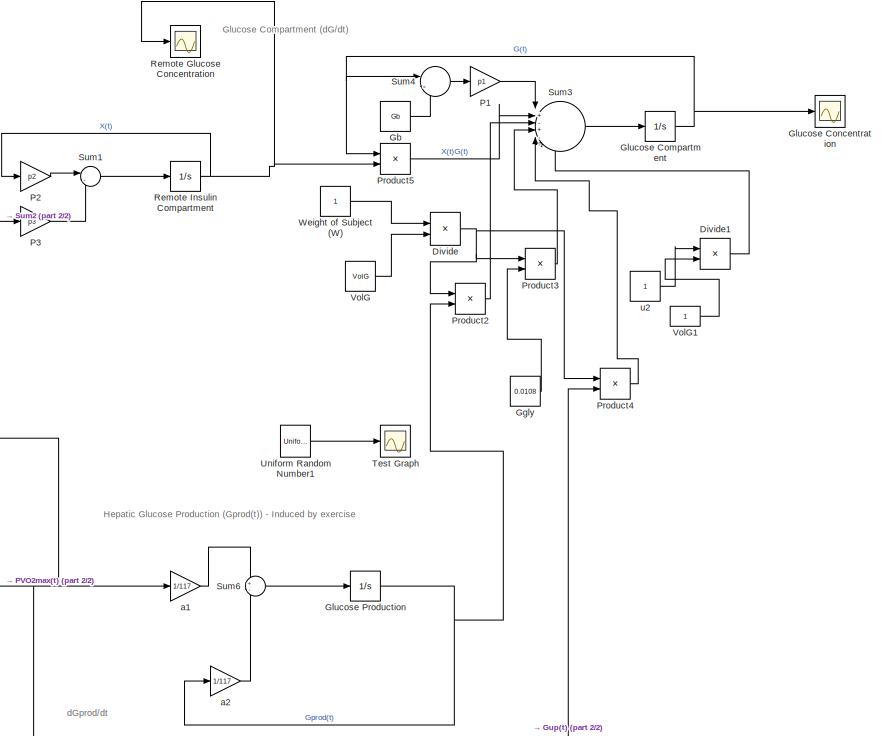
[diagram: root canvas - part 1/2, middle right region]
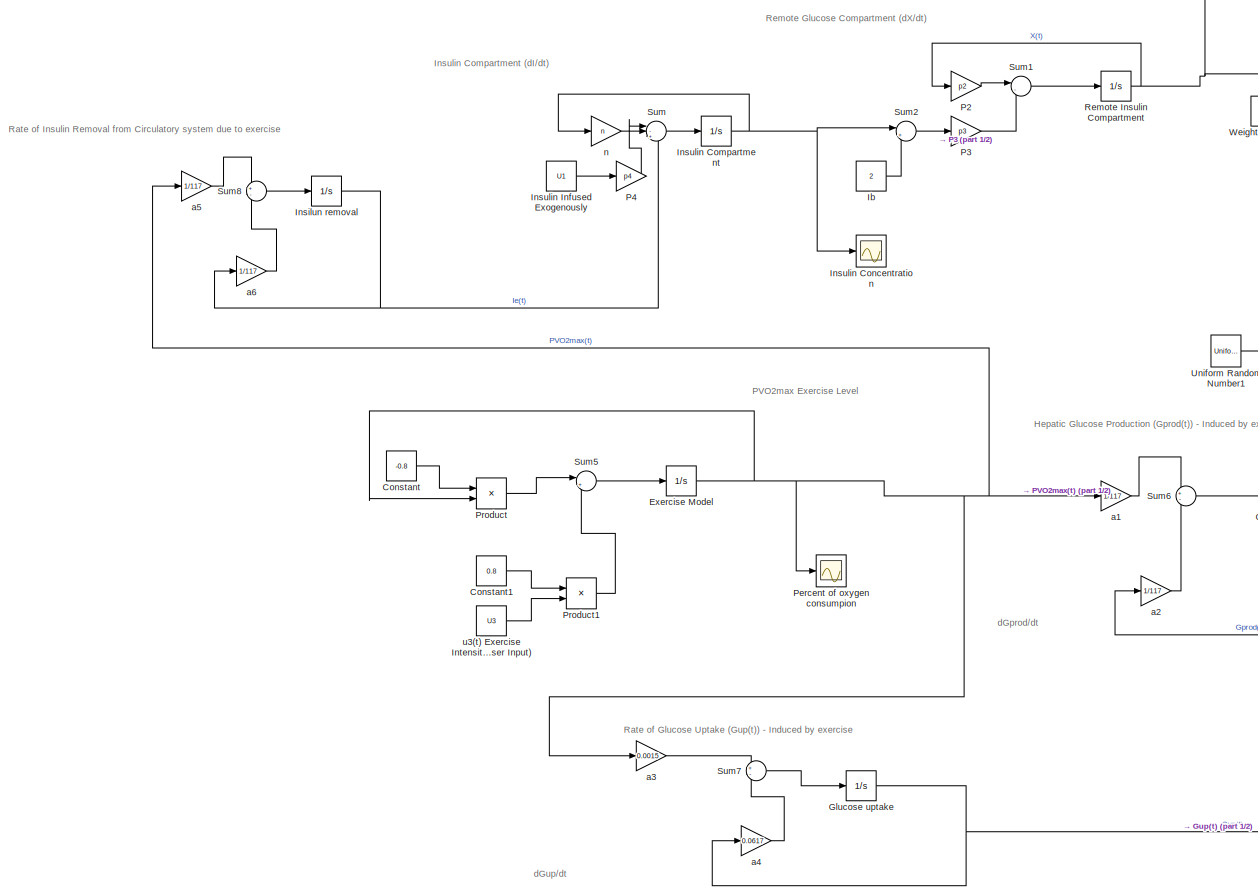
[diagram: root canvas - part 2/2, center side, full height]
MODEL slx_4f7b516d8ad5
KIND model
CONFIG AbsTol = auto
CONFIG EnableMultiTasking = off
CONFIG FixedStep = auto
CONFIG MaxStep = auto
CONFIG MinStep = auto
CONFIG RelTol = 1e-3
CONFIG SampleTimeConstraint = Unconstrained
CONFIG SolverName = VariableStepAuto
CONFIG StartTime = 0.0
CONFIG StopTime = 1000
WORKSPACE source: mxarray member
WORKSPACE Gb = 80
WORKSPACE U1 = 10
WORKSPACE U3 = 0
WORKSPACE VolG = 117
WORKSPACE n = 0.142
WORKSPACE p1 = 0.035
WORKSPACE p2 = 0.05
WORKSPACE p3 = 2.8e-05
WORKSPACE p4 = 0.098
BLOCK [Constant] Constant
  Value = -0.8
BLOCK [Constant] Constant1
  Value = 0.8
BLOCK [Product] Divide
  Inputs = */
  Ports = [2, 1]
BLOCK [Product] Divide1
  Inputs = */
  Ports = [2, 1]
BLOCK [Integrator] Exercise Model 
  Ports = [1, 1]
BLOCK [Constant] Gb
  NameLocation = top
  Value = Gb
BLOCK [Constant] Ggly
  Value = 0.0108
BLOCK [Integrator] Glucose Compartment
  Ports = [1, 1]
BLOCK [Scope] Glucose Concentration
  Floating = off
  NumInputPorts = 1
  Ports = [1]
  ScopeSpecificationString = Simulink.scopes.TimeScopeBlockCfg('CurrentConfiguration', extmgr.ConfigurationSet(extmgr.Configuration('Core','General UI',true),extmgr.Configuration('Core','Source UI',true),extmgr.Configuration('Sources','WiredSimulink',true,'DataLoggingVariableName','ScopeData1'),extmgr.Configuration('Visuals','Time Domain',true,'SerializedDisplays',{struct('MinYLimReal','-16.76066','MaxYLimReal','150.84591','Y...<+1810ch>
BLOCK [Integrator] Glucose Production
  Ports = [1, 1]
BLOCK [Integrator] Glucose uptake
  Ports = [1, 1]
BLOCK [Constant] Ib
  Value = 2
BLOCK [Integrator] Insilun removal
  Ports = [1, 1]
BLOCK [Integrator] Insulin Compartment
  InitialCondition = 1
  Ports = [1, 1]
BLOCK [Scope] Insulin Concentration
  Floating = off
  NumInputPorts = 1
  Ports = [1]
  ScopeSpecificationString = Simulink.scopes.TimeScopeBlockCfg('CurrentConfiguration', extmgr.ConfigurationSet(extmgr.Configuration('Core','General UI',true),extmgr.Configuration('Core','Source UI',true),extmgr.Configuration('Sources','WiredSimulink',true,'DataLoggingVariableName','ScopeData2'),extmgr.Configuration('Visuals','Time Domain',true,'SerializedDisplays',{struct('MinYLimReal','0.44514','MaxYLimReal','5.68677','YLabe...<+1764ch>
BLOCK [Constant] Insulin Infused Exogenously
  NameLocation = top
  OutMax = 10
  OutMin = 0
  Value = U1
BLOCK [Gain] P1
  Gain = p1
BLOCK [Gain] P2
  Gain = p2
BLOCK [Gain] P3
  Gain = p3
BLOCK [Gain] P4
  Gain = p4
BLOCK [Scope] Percent of oxygen consumpion 
  Floating = off
  NumInputPorts = 1
  Ports = [1]
  ScopeSpecificationString = Simulink.scopes.TimeScopeBlockCfg('CurrentConfiguration', extmgr.ConfigurationSet(extmgr.Configuration('Core','General UI',true),extmgr.Configuration('Core','Source UI',true),extmgr.Configuration('Sources','WiredSimulink',true,'DataLoggingVariableName','ScopeData1'),extmgr.Configuration('Visuals','Time Domain',true,'SerializedDisplays',{struct('MinYLimReal','-1.00000','MaxYLimReal','1.00000','YLab...<+1369ch>
BLOCK [Product] Product
  Ports = [2, 1]
BLOCK [Product] Product1
  Ports = [2, 1]
BLOCK [Product] Product2
  Ports = [2, 1]
BLOCK [Product] Product3
  Ports = [2, 1]
BLOCK [Product] Product4
  Ports = [2, 1]
BLOCK [Product] Product5
  Ports = [2, 1]
BLOCK [Scope] Remote Glucose Concentration
  Floating = off
  NumInputPorts = 1
  Ports = [1]
  ScopeSpecificationString = Simulink.scopes.TimeScopeBlockCfg('CurrentConfiguration', extmgr.ConfigurationSet(extmgr.Configuration('Core','General UI',true),extmgr.Configuration('Core','Source UI',true),extmgr.Configuration('Sources','WiredSimulink',true,'DataLoggingVariableName','ScopeData3'),extmgr.Configuration('Visuals','Time Domain',true,'SerializedDisplays',{struct('MinYLimReal','-0.00023','MaxYLimReal','0.00134','YLab...<+1519ch>
BLOCK [Integrator] Remote Insulin Compartment
  Ports = [1, 1]
BLOCK [Sum] Sum
  Inputs = |-+-
  Ports = [3, 1]
BLOCK [Sum] Sum1
  Inputs = |-+
  Ports = [2, 1]
BLOCK [Sum] Sum2
  Inputs = |+-
  Ports = [2, 1]
BLOCK [Sum] Sum3
  Inputs = |+-+--+
  Ports = [6, 1]
BLOCK [Sum] Sum4
  Inputs = |-+
  Ports = [2, 1]
BLOCK [Sum] Sum5
  Inputs = |++
  Ports = [2, 1]
BLOCK [Sum] Sum6
  Inputs = +-
  Ports = [2, 1]
BLOCK [Sum] Sum7
  Inputs = +-
  Ports = [2, 1]
BLOCK [Sum] Sum8
  Inputs = +-
  Ports = [2, 1]
BLOCK [Scope] Test Graph
  Floating = off
  NumInputPorts = 1
  Ports = [1]
  ScopeSpecificationString = Simulink.scopes.TimeScopeBlockCfg('CurrentConfiguration', extmgr.ConfigurationSet(extmgr.Configuration('Core','General UI',true),extmgr.Configuration('Core','Source UI',true),extmgr.Configuration('Sources','WiredSimulink',true),extmgr.Configuration('Visuals','Time Domain',true,'SerializedDisplays',{struct('MinYLimReal','-1.24263','MaxYLimReal','11.24316','YLabelReal','','MinYLimMag','0.00000','Max...<+1752ch>
BLOCK [UniformRandomNumber] Uniform Random Number1
  Maximum = 10
  Minimum = 0
  SampleTime = 1
BLOCK [Constant] VolG
  Value = VolG
BLOCK [Constant] VolG1
BLOCK [Constant] Weight of Subject (W)
BLOCK [Gain] a1
  Gain = 1/117
BLOCK [Gain] a2
  Gain = 1/117
BLOCK [Gain] a3
  Gain = 0.0015
BLOCK [Gain] a4
  Gain = 0.0617
BLOCK [Gain] a5
  Gain = 1/117
BLOCK [Gain] a6
  Gain = 1/117
BLOCK [Gain] n
  Gain = n
  NameLocation = top
BLOCK [Constant] u2
BLOCK [Constant] u3(t) Exercise Intensity (User Input) 
  Value = U3
ANNOTATION (root): Glucose Compartment (dG/dt)
ANNOTATION (root): Hepatic Glucose Production (Gprod(t)) - Induced by exercise
ANNOTATION (root): Insulin Compartment (dI/dt)
ANNOTATION (root): PVO2max Exercise Level
ANNOTATION (root): Rate of Glucose Uptake (Gup(t)) - Induced by exercise
ANNOTATION (root): Rate of Insulin Removal from Circulatory system due to exercise
ANNOTATION (root): Remote Glucose Compartment (dX/dt)
ANNOTATION (root): dGprod/dt
ANNOTATION (root): dGup/dt
LINE Constant1:1 -> Product1:1
LINE Constant:1 -> Product:1
LINE Divide1:1 -> Sum3:6
NET Divide:1 -> Product2:1, Product3:1, Product4:1
NET Exercise Model :1 -> Percent of oxygen consumpion :1, Product:2, a1:1, a3:1, a5:1
LINE Gb:1 -> Sum4:2
LINE Ggly:1 -> Product3:2
NET Glucose Compartment:1 -> Glucose Concentration:1, Product5:1, Sum4:1
NET Glucose Production:1 -> Product2:2, a2:1
NET Glucose uptake:1 -> Product4:2, a4:1
LINE Ib:1 -> Sum2:2
NET Insilun removal:1 -> Sum:3, a6:1
NET Insulin Compartment:1 -> Insulin Concentration:1, Sum2:1, n:1
LINE Insulin Infused Exogenously:1 -> P4:1
LINE P1:1 -> Sum3:1
LINE P2:1 -> Sum1:1
LINE P3:1 -> Sum1:2
LINE P4:1 -> Sum:2
LINE Product1:1 -> Sum5:2
LINE Product2:1 -> Sum3:3
LINE Product3:1 -> Sum3:4
LINE Product4:1 -> Sum3:5
LINE Product5:1 -> Sum3:2
LINE Product:1 -> Sum5:1
NET Remote Insulin Compartment:1 -> P2:1, Product5:2, Remote Glucose Concentration:1
LINE Sum1:1 -> Remote Insulin Compartment:1
LINE Sum2:1 -> P3:1
LINE Sum3:1 -> Glucose Compartment:1
LINE Sum4:1 -> P1:1
LINE Sum5:1 -> Exercise Model :1
LINE Sum6:1 -> Glucose Production:1
LINE Sum7:1 -> Glucose uptake:1
LINE Sum8:1 -> Insilun removal:1
LINE Sum:1 -> Insulin Compartment:1
LINE Uniform Random Number1:1 -> Test Graph:1
LINE VolG1:1 -> Divide1:2
LINE VolG:1 -> Divide:2
LINE Weight of Subject (W):1 -> Divide:1
LINE a1:1 -> Sum6:1
LINE a2:1 -> Sum6:2
LINE a3:1 -> Sum7:1
LINE a4:1 -> Sum7:2
LINE a5:1 -> Sum8:1
LINE a6:1 -> Sum8:2
LINE n:1 -> Sum:1
LINE u2:1 -> Divide1:1
LINE u3(t) Exercise Intensity (User Input) :1 -> Product1:2
note: NET lines group one-source signal fan-out (src -> all destinations, sorted); 1:1 wires keep LINE
